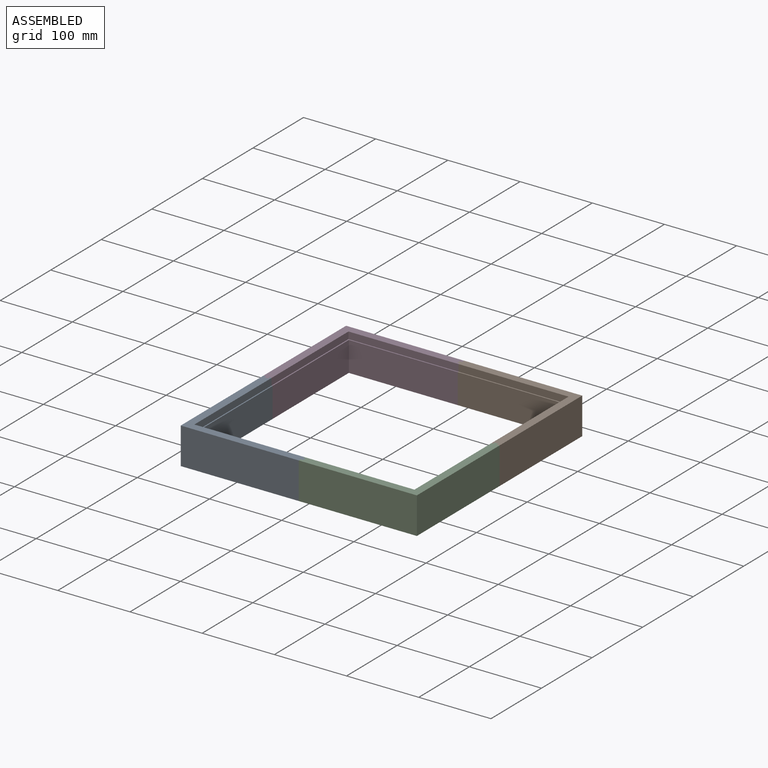
[diagram: assembled view]
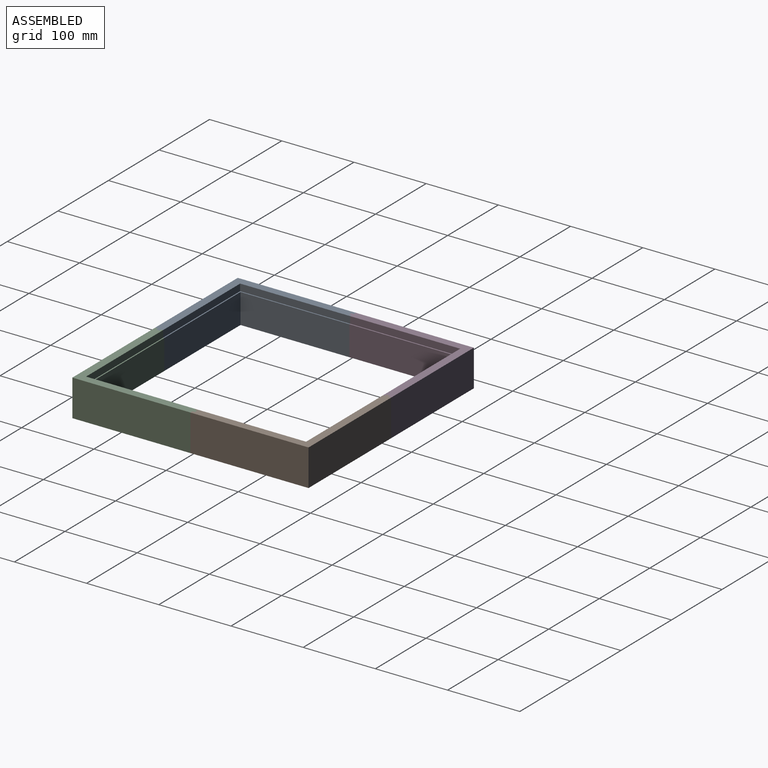
[diagram: assembled view, second angle]
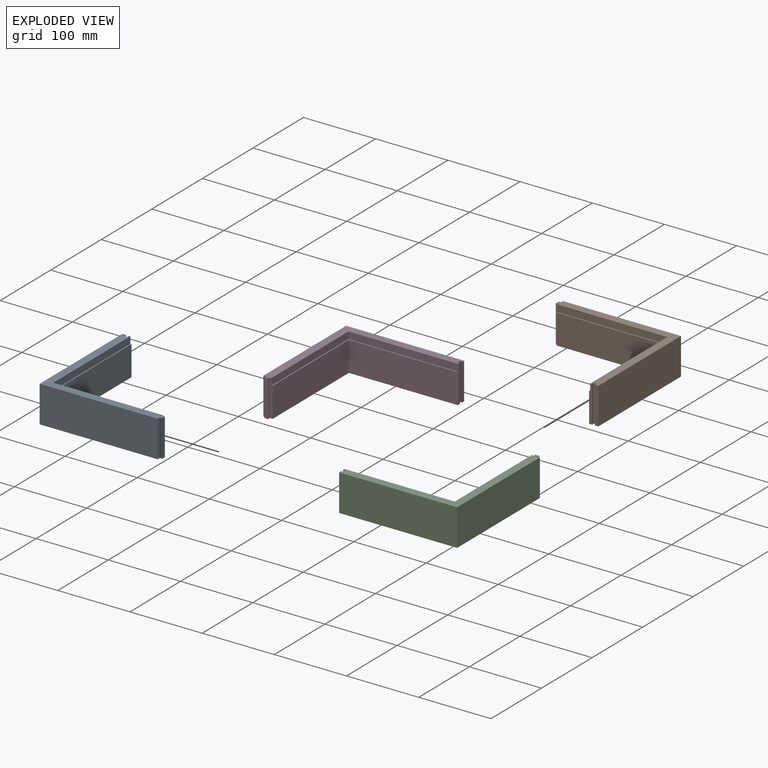
[diagram: exploded view]
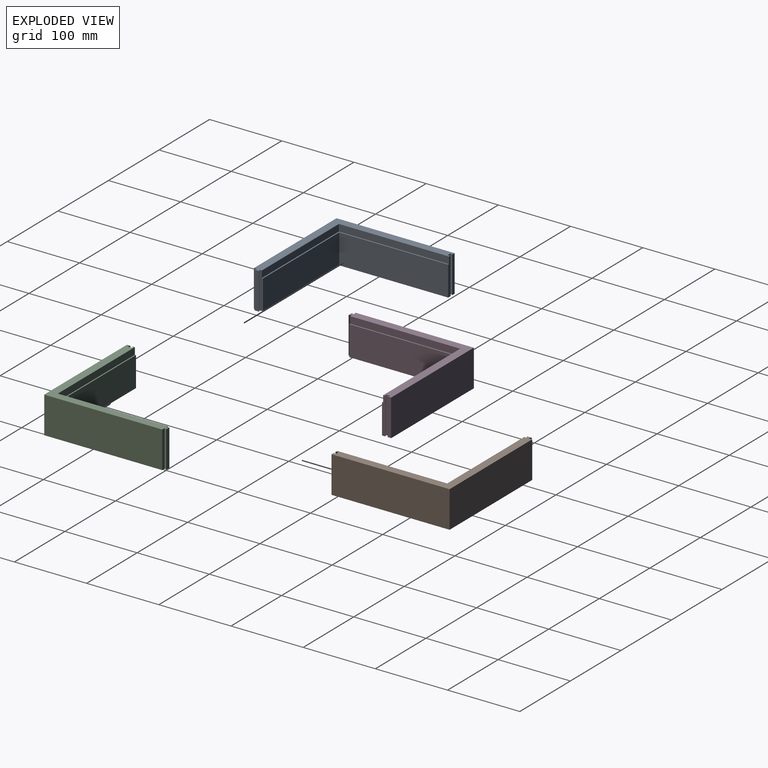
[diagram: exploded view, second angle]
ASSEMBLY  parts=4 mates=3
PART A: 21 faces, bbox 163.5x166.7x50.8 mm
  f0: plane 50.8x4.76mm, normal (1,0,0), area 226.8mm2, adj f1,f3,f12,f15,f17,f18
  f1: plane 166.69x163.51mm, normal (0,0,1), area 3510.6mm2, adj f0,f4,f5,f6,f7,f8,f9,f10
  f2: plane 150.81x41.28mm, normal (1,0,0), area 6224.8mm2, adj f3,f11,f12,f18
  f3: plane 150.81x41.28mm, normal (0,-1,0), area 6224.8mm2, adj f0,f2,f12,f18
  f4: plane 50.8x4.76mm, normal (1,0,0), area 241.9mm2, adj f1,f5,f12,f13
  f5: plane 163.51x50.8mm, normal (0,1,0), area 8306.4mm2, adj f1,f4,f6,f12
  f6: plane 163.51x50.8mm, normal (-1,0,0), area 8306.4mm2, adj f1,f5,f7,f12
  f7: plane 50.8x4.76mm, normal (0,-1,0), area 241.9mm2, adj f1,f6,f8,f12
  f8: plane 50.8x3.18mm, normal (-0.89,0.45,0), area 180.3mm2, adj f1,f7,f9,f12
  f9: plane 50.8x6.35mm, normal (0,-1,0), area 322.6mm2, adj f1,f8,f10,f12
  f10: plane 50.8x3.18mm, normal (0.89,0.45,0), area 180.3mm2, adj f1,f9,f11,f12
  f11: plane 50.8x4.76mm, normal (0,-1,0), area 226.8mm2, adj f1,f2,f10,f12,f16,f18
  f12: plane 166.69x163.51mm, normal (0,0,-1), area 3960.3mm2, adj f0,f2,f3,f4,f5,f6,f7,f8
  f13: plane 50.8x3.18mm, normal (-0.45,-0.89,0), area 180.3mm2, adj f1,f4,f12,f14
  f14: plane 50.8x6.35mm, normal (1,0,0), area 322.6mm2, adj f1,f12,f13,f15
  f15: plane 50.8x3.18mm, normal (-0.45,0.89,0), area 180.3mm2, adj f0,f1,f12,f14
  f16: plane 152.4x9.53mm, normal (1,0,0), area 1451.6mm2, adj f1,f11,f17,f18
  f17: plane 152.4x9.53mm, normal (0,-1,0), area 1451.6mm2, adj f0,f1,f16,f18
  f18: plane 152.4x152.4mm, normal (0,0,1), area 481.3mm2, adj f0,f2,f3,f11,f16,f17
  f19: cylinder r=3.17mm len=12.7mm, axis (0,0,-1), area 253.4mm2, adj f12,f20
  f20: plane 6.35x6.35mm, normal (0,0,-1), area 31.7mm2, adj f19
PART B: same geometry as A
PART C: same geometry as A
PART D: same geometry as A
PLACE A rot(axis=(0,0,1),90deg) t=(-5.06,4.74,-12.7)mm
PLACE B rot(axis=(0,0,-1),90deg) t=(-5.06,4.74,-12.7)mm
PLACE C rot(axis=(0,0,-1),180deg) t=(-5.06,4.74,-12.7)mm
PLACE D rot(axis=(0.07,-0.93,0.36),0deg) t=(-5.06,4.74,-12.7)mm
MATE fastened D.f9 <-> A.f14  axis (0,-1,0) through (-162.23,1.56,12.7)mm
MATE fastened B.f14 <-> C.f9  axis (0,-1,0) through (152.1,7.91,12.7)mm
MATE fastened A.f9 <-> C.f14  axis (1,0,0) through (-1.89,-152.42,12.7)mm
